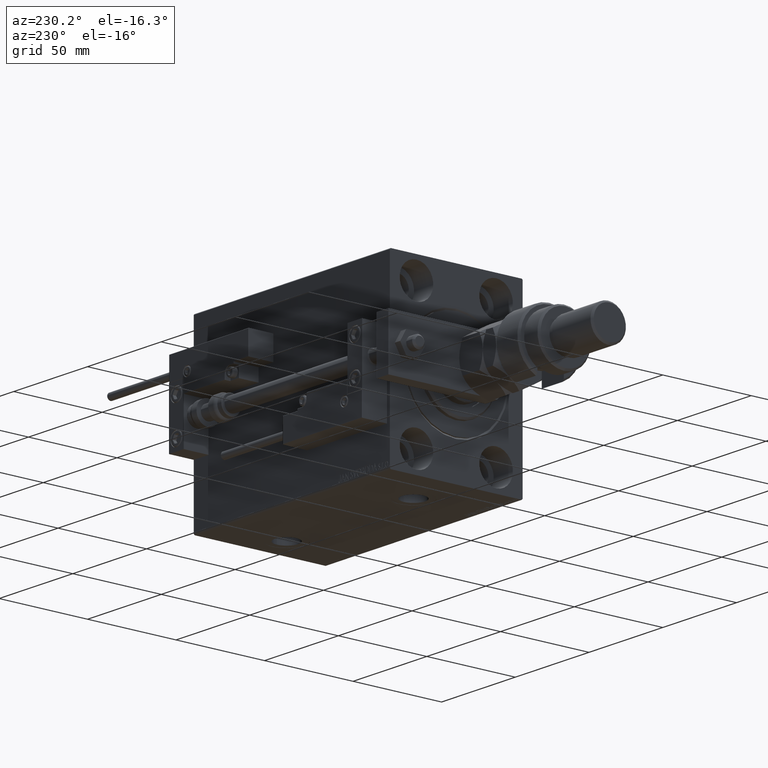
[diagram: clean part render]
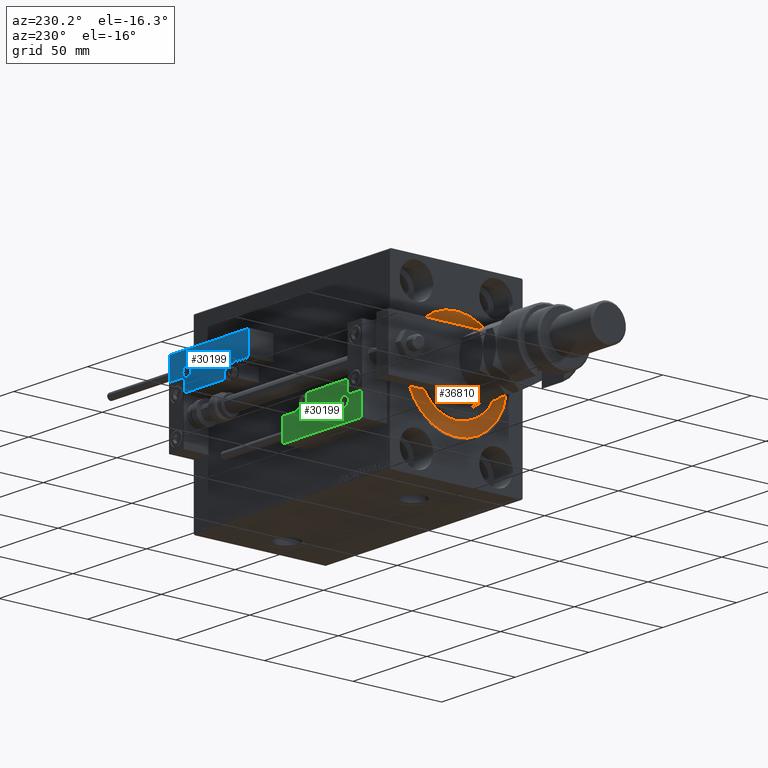
[diagram: same view with three faces highlighted in distinct colors, each labeled with its STEP entity id]
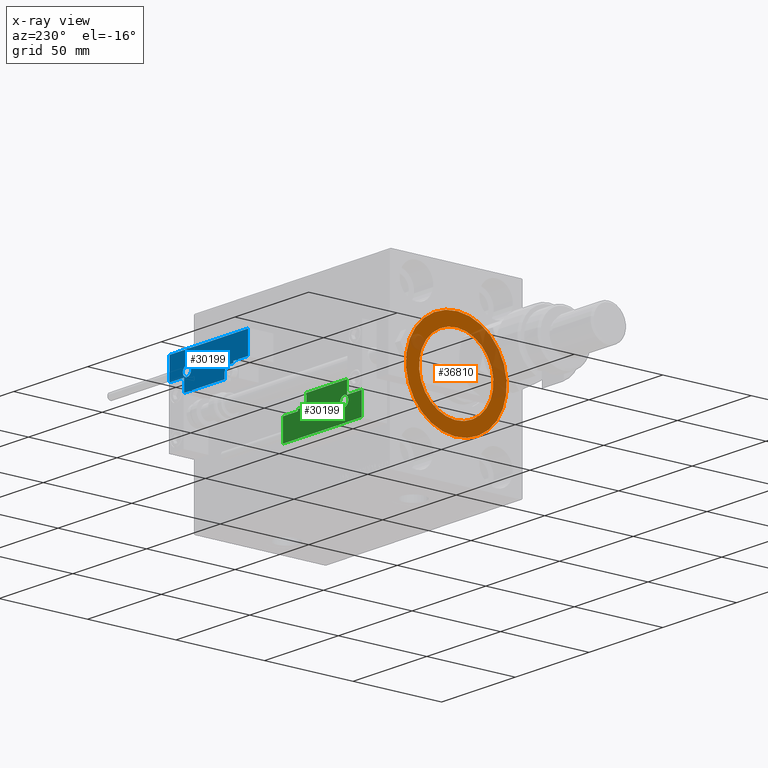
[diagram: x-ray of the same camera — body ghosted, the three highlighted faces saturated]
A machine part, auxiliary view with three faces highlighted in distinct colors.
The next image is the same camera in x-ray (body ghosted, the three faces saturated) — at least one of them is partly hidden behind the body in this view.
Their STEP definitions:

[orange] entity #36810 — the highlighted planar face has unit normal (1, 0, -0).
#93 = DIRECTION ( 'NONE',  ( 0.000000000000000000, 0.000000000000000000, -1.000000000000000000 ) ) ;
#1700 = DIRECTION ( 'NONE',  ( 1.000000000000000000, -0.000000000000000000, 0.000000000000000000 ) ) ;
#2395 = DIRECTION ( 'NONE',  ( -1.000000000000000000, 0.000000000000000000, 0.000000000000000000 ) ) ;
#3535 = FACE_OUTER_BOUND ( 'NONE', #47115, .T. ) ;
#4514 = CARTESIAN_POINT ( 'NONE',  ( 0.000000000000000000, 0.000000000000000000, 0.000000000000000000 ) ) ;
#5027 = VERTEX_POINT ( 'NONE', #29146 ) ;
#6044 = ORIENTED_EDGE ( 'NONE', *, *, #47776, .F. ) ;
#6458 = AXIS2_PLACEMENT_3D ( 'NONE', #20470, #37265, #16323 ) ;
#6852 = FACE_BOUND ( 'NONE', #35082, .T. ) ;
#8925 = DIRECTION ( 'NONE',  ( 1.000000000000000000, -0.000000000000000000, 0.000000000000000000 ) ) ;
#10400 = CARTESIAN_POINT ( 'NONE',  ( 0.000000000000000000, 0.000000000000000000, 0.000000000000000000 ) ) ;
#10560 = CIRCLE ( 'NONE', #29906, 21.00000000000000000 ) ;
#12498 = ORIENTED_EDGE ( 'NONE', *, *, #24189, .F. ) ;
#13923 = CARTESIAN_POINT ( 'NONE',  ( 0.000000000000000000, 2.571758278209441661E-15, -21.00000000000000000 ) ) ;
#15230 = CIRCLE ( 'NONE', #18742, 21.00000000000000000 ) ;
#15368 = EDGE_CURVE ( 'NONE', #27259, #35534, #54298, .T. ) ;
#15943 = PLANE ( 'NONE',  #22359 ) ;
#16323 = DIRECTION ( 'NONE',  ( 0.000000000000000000, 0.000000000000000000, 1.000000000000000000 ) ) ;
#18240 = CARTESIAN_POINT ( 'NONE',  ( 0.000000000000000000, 0.000000000000000000, 0.000000000000000000 ) ) ;
#18514 = DIRECTION ( 'NONE',  ( 0.000000000000000000, 0.000000000000000000, -1.000000000000000000 ) ) ;
#18742 = AXIS2_PLACEMENT_3D ( 'NONE', #18240, #1700, #18514 ) ;
#20366 = DIRECTION ( 'NONE',  ( 0.000000000000000000, 0.000000000000000000, 1.000000000000000000 ) ) ;
#20470 = CARTESIAN_POINT ( 'NONE',  ( 0.000000000000000000, 0.000000000000000000, 0.000000000000000000 ) ) ;
#21938 = ORIENTED_EDGE ( 'NONE', *, *, #32088, .F. ) ;
#22359 = AXIS2_PLACEMENT_3D ( 'NONE', #40746, #40208, #20366 ) ;
#24189 = EDGE_CURVE ( 'NONE', #5027, #52697, #10560, .T. ) ;
#24632 = ORIENTED_EDGE ( 'NONE', *, *, #15368, .F. ) ;
#27259 = VERTEX_POINT ( 'NONE', #29946 ) ;
#29146 = CARTESIAN_POINT ( 'NONE',  ( 0.000000000000000000, 0.000000000000000000, 21.00000000000000000 ) ) ;
#29906 = AXIS2_PLACEMENT_3D ( 'NONE', #4514, #8925, #93 ) ;
#29946 = CARTESIAN_POINT ( 'NONE',  ( 0.000000000000000000, 3.490243377569956456E-15, 28.50000000000000000 ) ) ;
#30573 = CARTESIAN_POINT ( 'NONE',  ( 0.000000000000000000, 0.000000000000000000, -28.50000000000000000 ) ) ;
#32088 = EDGE_CURVE ( 'NONE', #35534, #27259, #34626, .T. ) ;
#34626 = CIRCLE ( 'NONE', #6458, 28.50000000000000000 ) ;
#35082 = EDGE_LOOP ( 'NONE', ( #12498, #6044 ) ) ;
#35534 = VERTEX_POINT ( 'NONE', #30573 ) ;
#36810 = ADVANCED_FACE ( 'NONE', ( #6852, #3535 ), #15943, .F. ) ;
#37265 = DIRECTION ( 'NONE',  ( -1.000000000000000000, 0.000000000000000000, 0.000000000000000000 ) ) ;
#40208 = DIRECTION ( 'NONE',  ( -1.000000000000000000, 0.000000000000000000, 0.000000000000000000 ) ) ;
#40746 = CARTESIAN_POINT ( 'NONE',  ( 0.000000000000000000, 0.000000000000000000, 0.000000000000000000 ) ) ;
#47115 = EDGE_LOOP ( 'NONE', ( #21938, #24632 ) ) ;
#47776 = EDGE_CURVE ( 'NONE', #52697, #5027, #15230, .T. ) ;
#49038 = AXIS2_PLACEMENT_3D ( 'NONE', #10400, #2395, #49222 ) ;
#49222 = DIRECTION ( 'NONE',  ( 0.000000000000000000, 0.000000000000000000, 1.000000000000000000 ) ) ;
#52697 = VERTEX_POINT ( 'NONE', #13923 ) ;
#54298 = CIRCLE ( 'NONE', #49038, 28.50000000000000000 ) ;

[blue] entity #30199 — the highlighted planar face has unit normal (0, 1, -0).
#102 = LINE ( 'NONE', #11723, #10601 ) ;
#751 = VERTEX_POINT ( 'NONE', #26067 ) ;
#2836 = CIRCLE ( 'NONE', #40807, 3.299999999999997158 ) ;
#2916 = DIRECTION ( 'NONE',  ( 1.000000000000000000, -0.000000000000000000, 0.000000000000000000 ) ) ;
#3038 = CARTESIAN_POINT ( 'NONE',  ( -16.69999999999999218, 0.3000000000000032085, 14.00000000000000000 ) ) ;
#3673 = CARTESIAN_POINT ( 'NONE',  ( -26.69999999999993534, 19.70000000000002061, 14.00000000000000000 ) ) ;
#3873 = DIRECTION ( 'NONE',  ( 1.000000000000000000, -1.734723475976796001E-16, 0.000000000000000000 ) ) ;
#5029 = FACE_BOUND ( 'NONE', #25686, .T. ) ;
#5778 = LINE ( 'NONE', #9650, #23198 ) ;
#5943 = CARTESIAN_POINT ( 'NONE',  ( 16.69999999999999929, 7.000000000000009770, 14.00000000000000000 ) ) ;
#6908 = EDGE_CURVE ( 'NONE', #8037, #24888, #11501, .T. ) ;
#7115 = VERTEX_POINT ( 'NONE', #15030 ) ;
#7604 = ORIENTED_EDGE ( 'NONE', *, *, #48766, .T. ) ;
#8037 = VERTEX_POINT ( 'NONE', #43761 ) ;
#9163 = VERTEX_POINT ( 'NONE', #12924 ) ;
#9172 = PLANE ( 'NONE',  #29276 ) ;
#9230 = ORIENTED_EDGE ( 'NONE', *, *, #26343, .T. ) ;
#9650 = CARTESIAN_POINT ( 'NONE',  ( -16.69999999999999218, 3.252606517456513302E-15, 14.00000000000000000 ) ) ;
#9909 = VERTEX_POINT ( 'NONE', #43304 ) ;
#10601 = VECTOR ( 'NONE', #50553, 1000.000000000000000 ) ;
#10647 = DIRECTION ( 'NONE',  ( 1.000000000000000000, 5.782411586589357639E-16, -0.000000000000000000 ) ) ;
#11501 = LINE ( 'NONE', #48988, #16106 ) ;
#11548 = EDGE_CURVE ( 'NONE', #27328, #19394, #48354, .T. ) ;
#11723 = CARTESIAN_POINT ( 'NONE',  ( -16.99999999999999289, 7.300000000000003375, 14.00000000000000000 ) ) ;
#12465 = CIRCLE ( 'NONE', #35328, 2.800000000000000266 ) ;
#12924 = CARTESIAN_POINT ( 'NONE',  ( -11.99999999999994849, 9.800000000000004263, 14.00000000000000000 ) ) ;
#13297 = ORIENTED_EDGE ( 'NONE', *, *, #49694, .T. ) ;
#13944 = EDGE_CURVE ( 'NONE', #46893, #27328, #49891, .T. ) ;
#13999 = CARTESIAN_POINT ( 'NONE',  ( -26.69999999999994600, 7.000000000000005329, 14.00000000000000000 ) ) ;
#14492 = VECTOR ( 'NONE', #49423, 1000.000000000000000 ) ;
#14567 = CARTESIAN_POINT ( 'NONE',  ( -26.69999999999994600, 7.300000000000005151, 14.00000000000000000 ) ) ;
#15030 = CARTESIAN_POINT ( 'NONE',  ( -16.69999999999999218, 7.300000000000003375, 14.00000000000000000 ) ) ;
#15896 = CIRCLE ( 'NONE', #29973, 2.800000000000000266 ) ;
#16106 = VECTOR ( 'NONE', #28042, 1000.000000000000000 ) ;
#16734 = ORIENTED_EDGE ( 'NONE', *, *, #42351, .T. ) ;
#17448 = FACE_OUTER_BOUND ( 'NONE', #33098, .T. ) ;
#19394 = VERTEX_POINT ( 'NONE', #54000 ) ;
#19582 = CARTESIAN_POINT ( 'NONE',  ( -26.99999999999993605, 19.70000000000002061, 14.00000000000000000 ) ) ;
#21950 = LINE ( 'NONE', #5943, #35262 ) ;
#23063 = CARTESIAN_POINT ( 'NONE',  ( 26.70000000000006324, 7.300000000000007816, 14.00000000000000000 ) ) ;
#23198 = VECTOR ( 'NONE', #47382, 1000.000000000000000 ) ;
#23459 = DIRECTION ( 'NONE',  ( 0.000000000000000000, -0.000000000000000000, -1.000000000000000000 ) ) ;
#24332 = VERTEX_POINT ( 'NONE', #25735 ) ;
#24888 = VERTEX_POINT ( 'NONE', #37129 ) ;
#24988 = DIRECTION ( 'NONE',  ( 1.000000000000000000, 0.000000000000000000, 0.000000000000000000 ) ) ;
#25023 = VECTOR ( 'NONE', #40777, 1000.000000000000000 ) ;
#25215 = EDGE_CURVE ( 'NONE', #54391, #7115, #102, .T. ) ;
#25686 = EDGE_LOOP ( 'NONE', ( #50373, #16734 ) ) ;
#25717 = VECTOR ( 'NONE', #10647, 1000.000000000000000 ) ;
#25735 = CARTESIAN_POINT ( 'NONE',  ( -17.59999999999994813, 9.800000000000004263, 14.00000000000000000 ) ) ;
#25977 = CARTESIAN_POINT ( 'NONE',  ( 0.000000000000000000, 0.000000000000000000, 14.00000000000000000 ) ) ;
#26067 = CARTESIAN_POINT ( 'NONE',  ( 16.69999999999999929, 6.300000000000003375, 14.00000000000000000 ) ) ;
#26343 = EDGE_CURVE ( 'NONE', #751, #46893, #21950, .T. ) ;
#27328 = VERTEX_POINT ( 'NONE', #23063 ) ;
#27402 = CARTESIAN_POINT ( 'NONE',  ( 26.70000000000006324, 20.00000000000001776, 14.00000000000000000 ) ) ;
#28001 = CARTESIAN_POINT ( 'NONE',  ( 17.00000000000000000, 6.300000000000003375, 14.00000000000000000 ) ) ;
#28042 = DIRECTION ( 'NONE',  ( -0.000000000000000000, 1.000000000000000000, -0.000000000000000000 ) ) ;
#29276 = AXIS2_PLACEMENT_3D ( 'NONE', #25977, #51313, #51589 ) ;
#29545 = ORIENTED_EDGE ( 'NONE', *, *, #13944, .T. ) ;
#29655 = CARTESIAN_POINT ( 'NONE',  ( -14.79999999999994920, 9.800000000000004263, 14.00000000000000000 ) ) ;
#29679 = CARTESIAN_POINT ( 'NONE',  ( 16.69999999999999929, 7.300000000000009592, 14.00000000000000000 ) ) ;
#29973 = AXIS2_PLACEMENT_3D ( 'NONE', #29655, #37398, #24988 ) ;
#30199 = ADVANCED_FACE ( 'NONE', ( #5029, #17448 ), #9172, .T. ) ;
#30485 = DIRECTION ( 'NONE',  ( 9.912705577010318647E-16, 1.000000000000000000, 0.000000000000000000 ) ) ;
#31081 = VECTOR ( 'NONE', #2916, 1000.000000000000000 ) ;
#32280 = VERTEX_POINT ( 'NONE', #3038 ) ;
#32801 = CARTESIAN_POINT ( 'NONE',  ( 13.99999999999999822, 3.000000000000002665, 14.00000000000000000 ) ) ;
#33098 = EDGE_LOOP ( 'NONE', ( #7604, #48280, #45439, #37211, #39042, #9230, #29545, #51514, #47310, #13297, #49964 ) ) ;
#33358 = EDGE_CURVE ( 'NONE', #24888, #9909, #2836, .T. ) ;
#33920 = LINE ( 'NONE', #13999, #41705 ) ;
#34767 = EDGE_CURVE ( 'NONE', #32280, #8037, #45874, .T. ) ;
#35020 = CARTESIAN_POINT ( 'NONE',  ( -14.79999999999994920, 9.800000000000004263, 14.00000000000000000 ) ) ;
#35262 = VECTOR ( 'NONE', #30485, 1000.000000000000000 ) ;
#35328 = AXIS2_PLACEMENT_3D ( 'NONE', #35020, #23459, #52362 ) ;
#36802 = CARTESIAN_POINT ( 'NONE',  ( 11.00000000000000000, 0.3000000000000032085, 14.00000000000000000 ) ) ;
#37129 = CARTESIAN_POINT ( 'NONE',  ( 10.69999999999999929, 3.000000000000003109, 14.00000000000000000 ) ) ;
#37211 = ORIENTED_EDGE ( 'NONE', *, *, #33358, .T. ) ;
#37398 = DIRECTION ( 'NONE',  ( 0.000000000000000000, -0.000000000000000000, -1.000000000000000000 ) ) ;
#37465 = LINE ( 'NONE', #19582, #25023 ) ;
#39042 = ORIENTED_EDGE ( 'NONE', *, *, #47129, .T. ) ;
#39279 = VECTOR ( 'NONE', #3873, 1000.000000000000000 ) ;
#40777 = DIRECTION ( 'NONE',  ( -1.000000000000000000, 6.424901762877063495E-17, -0.000000000000000000 ) ) ;
#40807 = AXIS2_PLACEMENT_3D ( 'NONE', #32801, #54005, #49879 ) ;
#41626 = CARTESIAN_POINT ( 'NONE',  ( 27.00000000000006395, 7.300000000000007816, 14.00000000000000000 ) ) ;
#41705 = VECTOR ( 'NONE', #50722, 1000.000000000000000 ) ;
#42351 = EDGE_CURVE ( 'NONE', #24332, #9163, #15896, .T. ) ;
#43304 = CARTESIAN_POINT ( 'NONE',  ( 13.99999999999999822, 6.300000000000001599, 14.00000000000000000 ) ) ;
#43761 = CARTESIAN_POINT ( 'NONE',  ( 10.69999999999999929, 0.3000000000000032085, 14.00000000000000000 ) ) ;
#44338 = EDGE_CURVE ( 'NONE', #9163, #24332, #12465, .T. ) ;
#45439 = ORIENTED_EDGE ( 'NONE', *, *, #6908, .T. ) ;
#45874 = LINE ( 'NONE', #36802, #31081 ) ;
#46893 = VERTEX_POINT ( 'NONE', #29679 ) ;
#47129 = EDGE_CURVE ( 'NONE', #9909, #751, #48397, .T. ) ;
#47310 = ORIENTED_EDGE ( 'NONE', *, *, #50554, .T. ) ;
#47382 = DIRECTION ( 'NONE',  ( 0.000000000000000000, -1.000000000000000000, 0.000000000000000000 ) ) ;
#48280 = ORIENTED_EDGE ( 'NONE', *, *, #34767, .T. ) ;
#48354 = LINE ( 'NONE', #27402, #14492 ) ;
#48379 = VERTEX_POINT ( 'NONE', #3673 ) ;
#48397 = LINE ( 'NONE', #28001, #25717 ) ;
#48766 = EDGE_CURVE ( 'NONE', #7115, #32280, #5778, .T. ) ;
#48988 = CARTESIAN_POINT ( 'NONE',  ( 10.69999999999999929, 3.000000000000003109, 14.00000000000000000 ) ) ;
#49423 = DIRECTION ( 'NONE',  ( 0.000000000000000000, 1.000000000000000000, -0.000000000000000000 ) ) ;
#49694 = EDGE_CURVE ( 'NONE', #48379, #54391, #33920, .T. ) ;
#49879 = DIRECTION ( 'NONE',  ( 1.000000000000000000, 0.000000000000000000, 0.000000000000000000 ) ) ;
#49891 = LINE ( 'NONE', #41626, #39279 ) ;
#49964 = ORIENTED_EDGE ( 'NONE', *, *, #25215, .T. ) ;
#50373 = ORIENTED_EDGE ( 'NONE', *, *, #44338, .T. ) ;
#50553 = DIRECTION ( 'NONE',  ( 1.000000000000000000, -1.734723475976815230E-16, 0.000000000000000000 ) ) ;
#50554 = EDGE_CURVE ( 'NONE', #19394, #48379, #37465, .T. ) ;
#50722 = DIRECTION ( 'NONE',  ( -8.006416042969869188E-16, -1.000000000000000000, 0.000000000000000000 ) ) ;
#51313 = DIRECTION ( 'NONE',  ( -0.000000000000000000, 0.000000000000000000, 1.000000000000000000 ) ) ;
#51514 = ORIENTED_EDGE ( 'NONE', *, *, #11548, .T. ) ;
#51589 = DIRECTION ( 'NONE',  ( 1.000000000000000000, 0.000000000000000000, 0.000000000000000000 ) ) ;
#52362 = DIRECTION ( 'NONE',  ( 1.000000000000000000, 0.000000000000000000, 0.000000000000000000 ) ) ;
#54000 = CARTESIAN_POINT ( 'NONE',  ( 26.70000000000006324, 19.70000000000001705, 14.00000000000000000 ) ) ;
#54005 = DIRECTION ( 'NONE',  ( 0.000000000000000000, -0.000000000000000000, -1.000000000000000000 ) ) ;
#54391 = VERTEX_POINT ( 'NONE', #14567 ) ;

[green] entity #30199 — the highlighted planar face has unit normal (-0, 1, -0).
#102 = LINE ( 'NONE', #11723, #10601 ) ;
#751 = VERTEX_POINT ( 'NONE', #26067 ) ;
#2836 = CIRCLE ( 'NONE', #40807, 3.299999999999997158 ) ;
#2916 = DIRECTION ( 'NONE',  ( 1.000000000000000000, -0.000000000000000000, 0.000000000000000000 ) ) ;
#3038 = CARTESIAN_POINT ( 'NONE',  ( -16.69999999999999218, 0.3000000000000032085, 14.00000000000000000 ) ) ;
#3673 = CARTESIAN_POINT ( 'NONE',  ( -26.69999999999993534, 19.70000000000002061, 14.00000000000000000 ) ) ;
#3873 = DIRECTION ( 'NONE',  ( 1.000000000000000000, -1.734723475976796001E-16, 0.000000000000000000 ) ) ;
#5029 = FACE_BOUND ( 'NONE', #25686, .T. ) ;
#5778 = LINE ( 'NONE', #9650, #23198 ) ;
#5943 = CARTESIAN_POINT ( 'NONE',  ( 16.69999999999999929, 7.000000000000009770, 14.00000000000000000 ) ) ;
#6908 = EDGE_CURVE ( 'NONE', #8037, #24888, #11501, .T. ) ;
#7115 = VERTEX_POINT ( 'NONE', #15030 ) ;
#7604 = ORIENTED_EDGE ( 'NONE', *, *, #48766, .T. ) ;
#8037 = VERTEX_POINT ( 'NONE', #43761 ) ;
#9163 = VERTEX_POINT ( 'NONE', #12924 ) ;
#9172 = PLANE ( 'NONE',  #29276 ) ;
#9230 = ORIENTED_EDGE ( 'NONE', *, *, #26343, .T. ) ;
#9650 = CARTESIAN_POINT ( 'NONE',  ( -16.69999999999999218, 3.252606517456513302E-15, 14.00000000000000000 ) ) ;
#9909 = VERTEX_POINT ( 'NONE', #43304 ) ;
#10601 = VECTOR ( 'NONE', #50553, 1000.000000000000000 ) ;
#10647 = DIRECTION ( 'NONE',  ( 1.000000000000000000, 5.782411586589357639E-16, -0.000000000000000000 ) ) ;
#11501 = LINE ( 'NONE', #48988, #16106 ) ;
#11548 = EDGE_CURVE ( 'NONE', #27328, #19394, #48354, .T. ) ;
#11723 = CARTESIAN_POINT ( 'NONE',  ( -16.99999999999999289, 7.300000000000003375, 14.00000000000000000 ) ) ;
#12465 = CIRCLE ( 'NONE', #35328, 2.800000000000000266 ) ;
#12924 = CARTESIAN_POINT ( 'NONE',  ( -11.99999999999994849, 9.800000000000004263, 14.00000000000000000 ) ) ;
#13297 = ORIENTED_EDGE ( 'NONE', *, *, #49694, .T. ) ;
#13944 = EDGE_CURVE ( 'NONE', #46893, #27328, #49891, .T. ) ;
#13999 = CARTESIAN_POINT ( 'NONE',  ( -26.69999999999994600, 7.000000000000005329, 14.00000000000000000 ) ) ;
#14492 = VECTOR ( 'NONE', #49423, 1000.000000000000000 ) ;
#14567 = CARTESIAN_POINT ( 'NONE',  ( -26.69999999999994600, 7.300000000000005151, 14.00000000000000000 ) ) ;
#15030 = CARTESIAN_POINT ( 'NONE',  ( -16.69999999999999218, 7.300000000000003375, 14.00000000000000000 ) ) ;
#15896 = CIRCLE ( 'NONE', #29973, 2.800000000000000266 ) ;
#16106 = VECTOR ( 'NONE', #28042, 1000.000000000000000 ) ;
#16734 = ORIENTED_EDGE ( 'NONE', *, *, #42351, .T. ) ;
#17448 = FACE_OUTER_BOUND ( 'NONE', #33098, .T. ) ;
#19394 = VERTEX_POINT ( 'NONE', #54000 ) ;
#19582 = CARTESIAN_POINT ( 'NONE',  ( -26.99999999999993605, 19.70000000000002061, 14.00000000000000000 ) ) ;
#21950 = LINE ( 'NONE', #5943, #35262 ) ;
#23063 = CARTESIAN_POINT ( 'NONE',  ( 26.70000000000006324, 7.300000000000007816, 14.00000000000000000 ) ) ;
#23198 = VECTOR ( 'NONE', #47382, 1000.000000000000000 ) ;
#23459 = DIRECTION ( 'NONE',  ( 0.000000000000000000, -0.000000000000000000, -1.000000000000000000 ) ) ;
#24332 = VERTEX_POINT ( 'NONE', #25735 ) ;
#24888 = VERTEX_POINT ( 'NONE', #37129 ) ;
#24988 = DIRECTION ( 'NONE',  ( 1.000000000000000000, 0.000000000000000000, 0.000000000000000000 ) ) ;
#25023 = VECTOR ( 'NONE', #40777, 1000.000000000000000 ) ;
#25215 = EDGE_CURVE ( 'NONE', #54391, #7115, #102, .T. ) ;
#25686 = EDGE_LOOP ( 'NONE', ( #50373, #16734 ) ) ;
#25717 = VECTOR ( 'NONE', #10647, 1000.000000000000000 ) ;
#25735 = CARTESIAN_POINT ( 'NONE',  ( -17.59999999999994813, 9.800000000000004263, 14.00000000000000000 ) ) ;
#25977 = CARTESIAN_POINT ( 'NONE',  ( 0.000000000000000000, 0.000000000000000000, 14.00000000000000000 ) ) ;
#26067 = CARTESIAN_POINT ( 'NONE',  ( 16.69999999999999929, 6.300000000000003375, 14.00000000000000000 ) ) ;
#26343 = EDGE_CURVE ( 'NONE', #751, #46893, #21950, .T. ) ;
#27328 = VERTEX_POINT ( 'NONE', #23063 ) ;
#27402 = CARTESIAN_POINT ( 'NONE',  ( 26.70000000000006324, 20.00000000000001776, 14.00000000000000000 ) ) ;
#28001 = CARTESIAN_POINT ( 'NONE',  ( 17.00000000000000000, 6.300000000000003375, 14.00000000000000000 ) ) ;
#28042 = DIRECTION ( 'NONE',  ( -0.000000000000000000, 1.000000000000000000, -0.000000000000000000 ) ) ;
#29276 = AXIS2_PLACEMENT_3D ( 'NONE', #25977, #51313, #51589 ) ;
#29545 = ORIENTED_EDGE ( 'NONE', *, *, #13944, .T. ) ;
#29655 = CARTESIAN_POINT ( 'NONE',  ( -14.79999999999994920, 9.800000000000004263, 14.00000000000000000 ) ) ;
#29679 = CARTESIAN_POINT ( 'NONE',  ( 16.69999999999999929, 7.300000000000009592, 14.00000000000000000 ) ) ;
#29973 = AXIS2_PLACEMENT_3D ( 'NONE', #29655, #37398, #24988 ) ;
#30199 = ADVANCED_FACE ( 'NONE', ( #5029, #17448 ), #9172, .T. ) ;
#30485 = DIRECTION ( 'NONE',  ( 9.912705577010318647E-16, 1.000000000000000000, 0.000000000000000000 ) ) ;
#31081 = VECTOR ( 'NONE', #2916, 1000.000000000000000 ) ;
#32280 = VERTEX_POINT ( 'NONE', #3038 ) ;
#32801 = CARTESIAN_POINT ( 'NONE',  ( 13.99999999999999822, 3.000000000000002665, 14.00000000000000000 ) ) ;
#33098 = EDGE_LOOP ( 'NONE', ( #7604, #48280, #45439, #37211, #39042, #9230, #29545, #51514, #47310, #13297, #49964 ) ) ;
#33358 = EDGE_CURVE ( 'NONE', #24888, #9909, #2836, .T. ) ;
#33920 = LINE ( 'NONE', #13999, #41705 ) ;
#34767 = EDGE_CURVE ( 'NONE', #32280, #8037, #45874, .T. ) ;
#35020 = CARTESIAN_POINT ( 'NONE',  ( -14.79999999999994920, 9.800000000000004263, 14.00000000000000000 ) ) ;
#35262 = VECTOR ( 'NONE', #30485, 1000.000000000000000 ) ;
#35328 = AXIS2_PLACEMENT_3D ( 'NONE', #35020, #23459, #52362 ) ;
#36802 = CARTESIAN_POINT ( 'NONE',  ( 11.00000000000000000, 0.3000000000000032085, 14.00000000000000000 ) ) ;
#37129 = CARTESIAN_POINT ( 'NONE',  ( 10.69999999999999929, 3.000000000000003109, 14.00000000000000000 ) ) ;
#37211 = ORIENTED_EDGE ( 'NONE', *, *, #33358, .T. ) ;
#37398 = DIRECTION ( 'NONE',  ( 0.000000000000000000, -0.000000000000000000, -1.000000000000000000 ) ) ;
#37465 = LINE ( 'NONE', #19582, #25023 ) ;
#39042 = ORIENTED_EDGE ( 'NONE', *, *, #47129, .T. ) ;
#39279 = VECTOR ( 'NONE', #3873, 1000.000000000000000 ) ;
#40777 = DIRECTION ( 'NONE',  ( -1.000000000000000000, 6.424901762877063495E-17, -0.000000000000000000 ) ) ;
#40807 = AXIS2_PLACEMENT_3D ( 'NONE', #32801, #54005, #49879 ) ;
#41626 = CARTESIAN_POINT ( 'NONE',  ( 27.00000000000006395, 7.300000000000007816, 14.00000000000000000 ) ) ;
#41705 = VECTOR ( 'NONE', #50722, 1000.000000000000000 ) ;
#42351 = EDGE_CURVE ( 'NONE', #24332, #9163, #15896, .T. ) ;
#43304 = CARTESIAN_POINT ( 'NONE',  ( 13.99999999999999822, 6.300000000000001599, 14.00000000000000000 ) ) ;
#43761 = CARTESIAN_POINT ( 'NONE',  ( 10.69999999999999929, 0.3000000000000032085, 14.00000000000000000 ) ) ;
#44338 = EDGE_CURVE ( 'NONE', #9163, #24332, #12465, .T. ) ;
#45439 = ORIENTED_EDGE ( 'NONE', *, *, #6908, .T. ) ;
#45874 = LINE ( 'NONE', #36802, #31081 ) ;
#46893 = VERTEX_POINT ( 'NONE', #29679 ) ;
#47129 = EDGE_CURVE ( 'NONE', #9909, #751, #48397, .T. ) ;
#47310 = ORIENTED_EDGE ( 'NONE', *, *, #50554, .T. ) ;
#47382 = DIRECTION ( 'NONE',  ( 0.000000000000000000, -1.000000000000000000, 0.000000000000000000 ) ) ;
#48280 = ORIENTED_EDGE ( 'NONE', *, *, #34767, .T. ) ;
#48354 = LINE ( 'NONE', #27402, #14492 ) ;
#48379 = VERTEX_POINT ( 'NONE', #3673 ) ;
#48397 = LINE ( 'NONE', #28001, #25717 ) ;
#48766 = EDGE_CURVE ( 'NONE', #7115, #32280, #5778, .T. ) ;
#48988 = CARTESIAN_POINT ( 'NONE',  ( 10.69999999999999929, 3.000000000000003109, 14.00000000000000000 ) ) ;
#49423 = DIRECTION ( 'NONE',  ( 0.000000000000000000, 1.000000000000000000, -0.000000000000000000 ) ) ;
#49694 = EDGE_CURVE ( 'NONE', #48379, #54391, #33920, .T. ) ;
#49879 = DIRECTION ( 'NONE',  ( 1.000000000000000000, 0.000000000000000000, 0.000000000000000000 ) ) ;
#49891 = LINE ( 'NONE', #41626, #39279 ) ;
#49964 = ORIENTED_EDGE ( 'NONE', *, *, #25215, .T. ) ;
#50373 = ORIENTED_EDGE ( 'NONE', *, *, #44338, .T. ) ;
#50553 = DIRECTION ( 'NONE',  ( 1.000000000000000000, -1.734723475976815230E-16, 0.000000000000000000 ) ) ;
#50554 = EDGE_CURVE ( 'NONE', #19394, #48379, #37465, .T. ) ;
#50722 = DIRECTION ( 'NONE',  ( -8.006416042969869188E-16, -1.000000000000000000, 0.000000000000000000 ) ) ;
#51313 = DIRECTION ( 'NONE',  ( -0.000000000000000000, 0.000000000000000000, 1.000000000000000000 ) ) ;
#51514 = ORIENTED_EDGE ( 'NONE', *, *, #11548, .T. ) ;
#51589 = DIRECTION ( 'NONE',  ( 1.000000000000000000, 0.000000000000000000, 0.000000000000000000 ) ) ;
#52362 = DIRECTION ( 'NONE',  ( 1.000000000000000000, 0.000000000000000000, 0.000000000000000000 ) ) ;
#54000 = CARTESIAN_POINT ( 'NONE',  ( 26.70000000000006324, 19.70000000000001705, 14.00000000000000000 ) ) ;
#54005 = DIRECTION ( 'NONE',  ( 0.000000000000000000, -0.000000000000000000, -1.000000000000000000 ) ) ;
#54391 = VERTEX_POINT ( 'NONE', #14567 ) ;